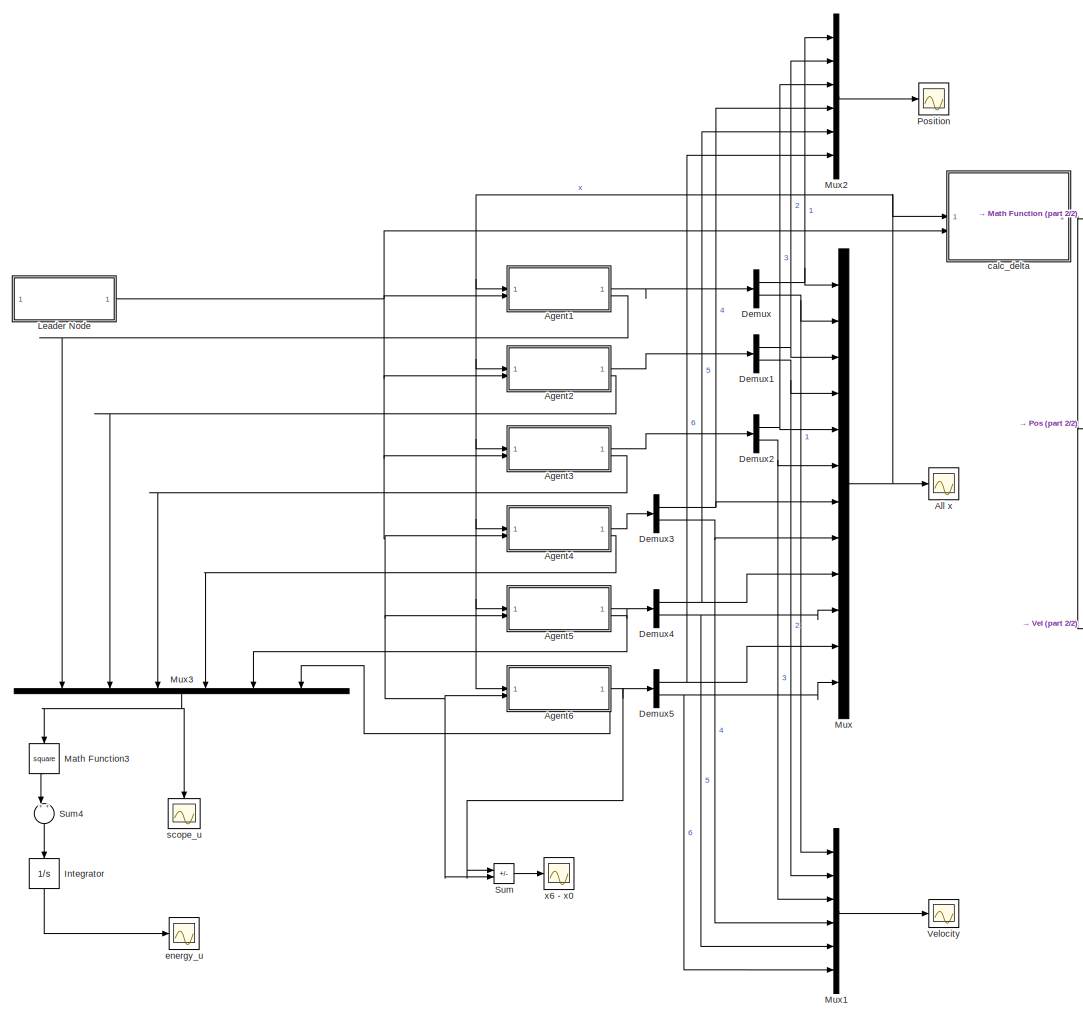
[diagram: root canvas - part 1/2, center side, full height]
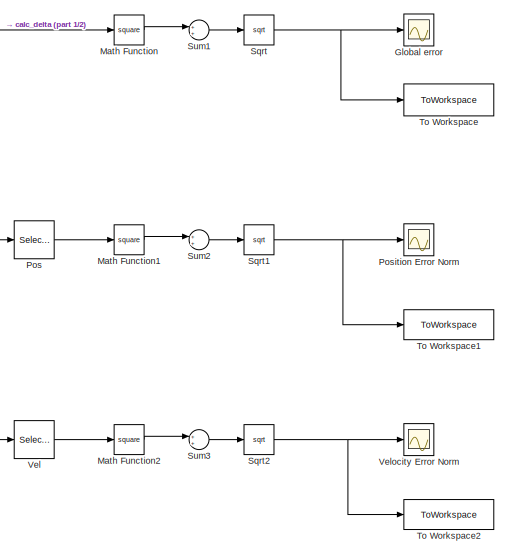
[diagram: root canvas - part 2/2, middle right region]
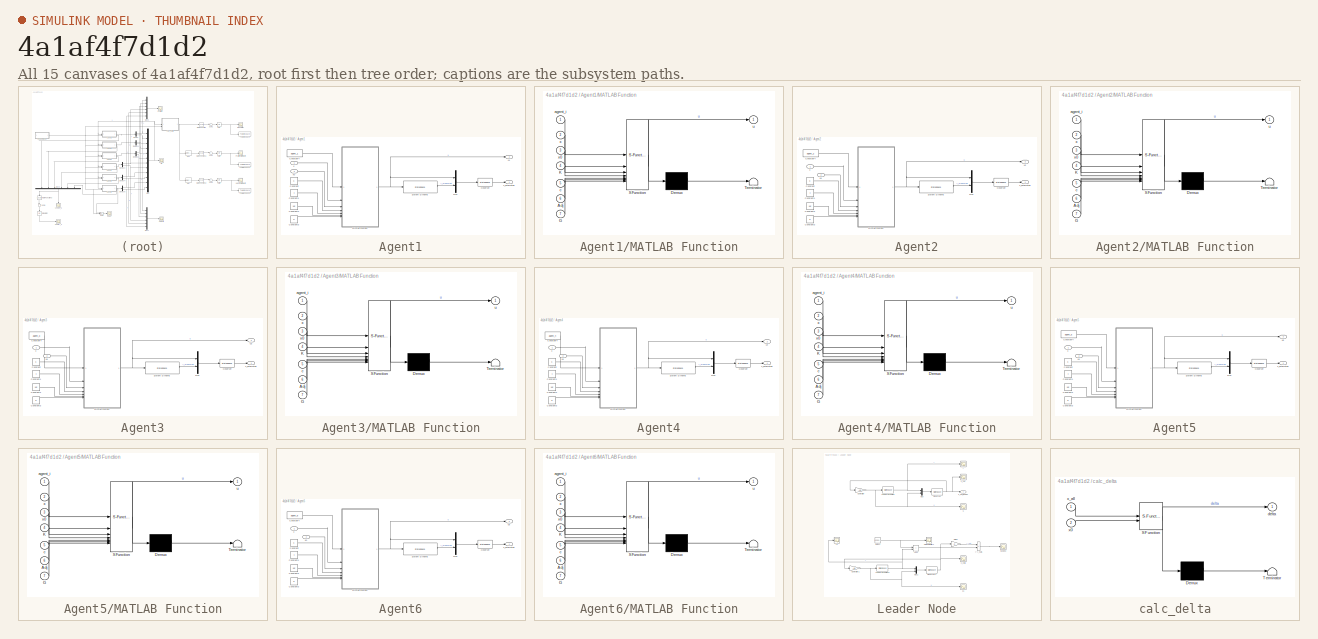
[diagram: thumbnail index - all 15 canvases of the model, root first then tree order]
MODEL slx_4a1af4f7d1d2
KIND model
CONFIG AbsTol = auto
CONFIG EnableMultiTasking = off
CONFIG FixedStep = auto
CONFIG MaxStep = auto
CONFIG MinStep = auto
CONFIG RelTol = 1e-3
CONFIG SampleTimeConstraint = Unconstrained
CONFIG SolverName = VariableStepAuto
CONFIG StartTime = 0.0
CONFIG StopTime = 15
BLOCK [SubSystem] Agent1
BLOCK [Constant] Agent1/Constant
  Value = K
  VectorParams1D = off
BLOCK [Constant] Agent1/Constant1
  Value = c
BLOCK [Constant] Agent1/Constant2
  Value = adj
BLOCK [Constant] Agent1/Constant3
  Value = G
BLOCK [Constant] Agent1/Constant4
  Value = agent_1
  VectorParams1D = off
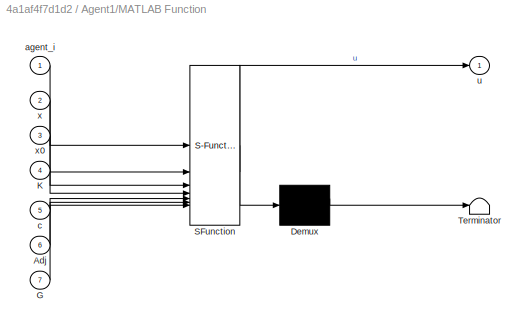
BLOCK [SubSystem] Agent1/MATLAB Function
  ErrorFcn = Stateflow.Translate.translate
  PermitHierarchicalResolution = ExplicitOnly
  SFBlockType = MATLAB Function
  TreatAsAtomicUnit = on
BLOCK [Demux] Agent1/MATLAB Function/ Demux 
  Outputs = 1
BLOCK [S-Function] Agent1/MATLAB Function/ SFunction 
  EnableBusSupport = on
  FunctionName = sf_sfun
  PortCounts = [7 2]
  SFcnIsStateOwnerBlock = off
  SFunctionDeploymentMode = off
  Tag = Stateflow S-Function 2
BLOCK [Terminator] Agent1/MATLAB Function/ Terminator 
BLOCK [Inport] Agent1/MATLAB Function/Adj
  Port = 6
BLOCK [Inport] Agent1/MATLAB Function/G
  Port = 7
BLOCK [Inport] Agent1/MATLAB Function/K
  Port = 4
BLOCK [Inport] Agent1/MATLAB Function/agent_i
BLOCK [Inport] Agent1/MATLAB Function/c
  Port = 5
BLOCK [Outport] Agent1/MATLAB Function/u
BLOCK [Inport] Agent1/MATLAB Function/x
  Port = 2
BLOCK [Inport] Agent1/MATLAB Function/x0
  Port = 3
BLOCK [Mux] Agent1/Mux
  DisplayOption = bar
  Inputs = 2
BLOCK [StateSpace] Agent1/Observer
  A = Aa_obv
  B = Ba_obv
  C = Ca_obv
  D = Da_obv
  InitialCondition = 0
BLOCK [StateSpace] Agent1/System  Dynamic
  A = (A-B*K0)
  B = B
  C = C
  D = 0
  InitialCondition = 0
BLOCK [Outport] Agent1/u1
  Port = 2
BLOCK [Inport] Agent1/x
BLOCK [Inport] Agent1/x0
  Port = 2
BLOCK [Outport] Agent1/x_estimated
BLOCK [SubSystem] Agent2
BLOCK [Constant] Agent2/Constant
  Value = K
  VectorParams1D = off
BLOCK [Constant] Agent2/Constant1
  Value = c
BLOCK [Constant] Agent2/Constant2
  Value = adj
BLOCK [Constant] Agent2/Constant3
  Value = G
BLOCK [Constant] Agent2/Constant4
  Value = agent_2
  VectorParams1D = off
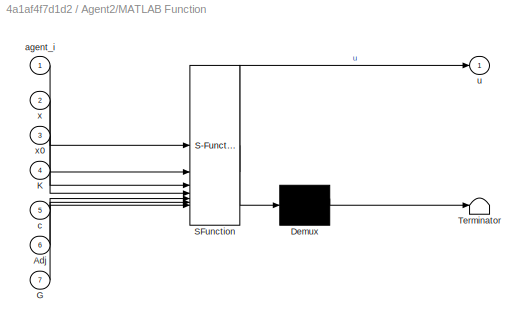
BLOCK [SubSystem] Agent2/MATLAB Function
  ErrorFcn = Stateflow.Translate.translate
  PermitHierarchicalResolution = ExplicitOnly
  SFBlockType = MATLAB Function
  TreatAsAtomicUnit = on
BLOCK [Demux] Agent2/MATLAB Function/ Demux 
  Outputs = 1
BLOCK [S-Function] Agent2/MATLAB Function/ SFunction 
  EnableBusSupport = on
  FunctionName = sf_sfun
  PortCounts = [7 2]
  SFcnIsStateOwnerBlock = off
  SFunctionDeploymentMode = off
  Tag = Stateflow S-Function 1
BLOCK [Terminator] Agent2/MATLAB Function/ Terminator 
BLOCK [Inport] Agent2/MATLAB Function/Adj
  Port = 6
BLOCK [Inport] Agent2/MATLAB Function/G
  Port = 7
BLOCK [Inport] Agent2/MATLAB Function/K
  Port = 4
BLOCK [Inport] Agent2/MATLAB Function/agent_i
BLOCK [Inport] Agent2/MATLAB Function/c
  Port = 5
BLOCK [Outport] Agent2/MATLAB Function/u
BLOCK [Inport] Agent2/MATLAB Function/x
  Port = 2
BLOCK [Inport] Agent2/MATLAB Function/x0
  Port = 3
BLOCK [Mux] Agent2/Mux
  DisplayOption = bar
  Inputs = 2
BLOCK [StateSpace] Agent2/Observer
  A = Aa_obv
  B = Ba_obv
  C = Ca_obv
  D = Da_obv
  InitialCondition = 0
BLOCK [StateSpace] Agent2/System  Dynamic
  A = (A-B*K0)
  B = B
  C = C
  D = 0
  InitialCondition = 0
BLOCK [Outport] Agent2/u2
  Port = 2
BLOCK [Inport] Agent2/x
BLOCK [Inport] Agent2/x0
  Port = 2
BLOCK [Outport] Agent2/x_estimated
BLOCK [SubSystem] Agent3
BLOCK [Constant] Agent3/Constant
  Value = K
  VectorParams1D = off
BLOCK [Constant] Agent3/Constant1
  Value = c
BLOCK [Constant] Agent3/Constant2
  Value = adj
BLOCK [Constant] Agent3/Constant3
  Value = G
BLOCK [Constant] Agent3/Constant4
  Value = agent_3
  VectorParams1D = off
BLOCK [SubSystem] Agent3/MATLAB Function
  ErrorFcn = Stateflow.Translate.translate
  PermitHierarchicalResolution = ExplicitOnly
  SFBlockType = MATLAB Function
  TreatAsAtomicUnit = on
BLOCK [Demux] Agent3/MATLAB Function/ Demux 
  Outputs = 1
BLOCK [S-Function] Agent3/MATLAB Function/ SFunction 
  EnableBusSupport = on
  FunctionName = sf_sfun
  PortCounts = [7 2]
  SFcnIsStateOwnerBlock = off
  SFunctionDeploymentMode = off
  Tag = Stateflow S-Function 3
BLOCK [Terminator] Agent3/MATLAB Function/ Terminator 
BLOCK [Inport] Agent3/MATLAB Function/Adj
  Port = 6
BLOCK [Inport] Agent3/MATLAB Function/G
  Port = 7
BLOCK [Inport] Agent3/MATLAB Function/K
  Port = 4
BLOCK [Inport] Agent3/MATLAB Function/agent_i
BLOCK [Inport] Agent3/MATLAB Function/c
  Port = 5
BLOCK [Outport] Agent3/MATLAB Function/u
BLOCK [Inport] Agent3/MATLAB Function/x
  Port = 2
BLOCK [Inport] Agent3/MATLAB Function/x0
  Port = 3
BLOCK [Mux] Agent3/Mux
  DisplayOption = bar
  Inputs = 2
BLOCK [StateSpace] Agent3/Observer
  A = Aa_obv
  B = Ba_obv
  C = Ca_obv
  D = Da_obv
  InitialCondition = 0
BLOCK [StateSpace] Agent3/System  Dynamic
  A = (A-B*K0)
  B = B
  C = C
  D = 0
  InitialCondition = 0
BLOCK [Outport] Agent3/u3
  Port = 2
BLOCK [Inport] Agent3/x
BLOCK [Inport] Agent3/x0
  Port = 2
BLOCK [Outport] Agent3/x_estimated
BLOCK [SubSystem] Agent4
BLOCK [Constant] Agent4/Constant
  Value = K
  VectorParams1D = off
BLOCK [Constant] Agent4/Constant1
  Value = c
BLOCK [Constant] Agent4/Constant2
  Value = adj
BLOCK [Constant] Agent4/Constant3
  Value = G
BLOCK [Constant] Agent4/Constant4
  Value = agent_4
  VectorParams1D = off
BLOCK [SubSystem] Agent4/MATLAB Function
  ErrorFcn = Stateflow.Translate.translate
  PermitHierarchicalResolution = ExplicitOnly
  SFBlockType = MATLAB Function
  TreatAsAtomicUnit = on
BLOCK [Demux] Agent4/MATLAB Function/ Demux 
  Outputs = 1
BLOCK [S-Function] Agent4/MATLAB Function/ SFunction 
  EnableBusSupport = on
  FunctionName = sf_sfun
  PortCounts = [7 2]
  SFcnIsStateOwnerBlock = off
  SFunctionDeploymentMode = off
  Tag = Stateflow S-Function 4
BLOCK [Terminator] Agent4/MATLAB Function/ Terminator 
BLOCK [Inport] Agent4/MATLAB Function/Adj
  Port = 6
BLOCK [Inport] Agent4/MATLAB Function/G
  Port = 7
BLOCK [Inport] Agent4/MATLAB Function/K
  Port = 4
BLOCK [Inport] Agent4/MATLAB Function/agent_i
BLOCK [Inport] Agent4/MATLAB Function/c
  Port = 5
BLOCK [Outport] Agent4/MATLAB Function/u
BLOCK [Inport] Agent4/MATLAB Function/x
  Port = 2
BLOCK [Inport] Agent4/MATLAB Function/x0
  Port = 3
BLOCK [Mux] Agent4/Mux
  DisplayOption = bar
  Inputs = 2
BLOCK [StateSpace] Agent4/Observer
  A = Aa_obv
  B = Ba_obv
  C = Ca_obv
  D = Da_obv
  InitialCondition = 0
BLOCK [StateSpace] Agent4/System  Dynamic
  A = (A-B*K0)
  B = B
  C = C
  D = 0
  InitialCondition = 0
BLOCK [Outport] Agent4/u4
  Port = 2
BLOCK [Inport] Agent4/x
BLOCK [Inport] Agent4/x0
  Port = 2
BLOCK [Outport] Agent4/x_estimated
BLOCK [SubSystem] Agent5
BLOCK [Constant] Agent5/Constant
  Value = K
  VectorParams1D = off
BLOCK [Constant] Agent5/Constant1
  Value = c
BLOCK [Constant] Agent5/Constant2
  Value = adj
BLOCK [Constant] Agent5/Constant3
  Value = G
BLOCK [Constant] Agent5/Constant4
  Value = agent_5
  VectorParams1D = off
BLOCK [SubSystem] Agent5/MATLAB Function
  ErrorFcn = Stateflow.Translate.translate
  PermitHierarchicalResolution = ExplicitOnly
  SFBlockType = MATLAB Function
  TreatAsAtomicUnit = on
BLOCK [Demux] Agent5/MATLAB Function/ Demux 
  Outputs = 1
BLOCK [S-Function] Agent5/MATLAB Function/ SFunction 
  EnableBusSupport = on
  FunctionName = sf_sfun
  PortCounts = [7 2]
  SFcnIsStateOwnerBlock = off
  SFunctionDeploymentMode = off
  Tag = Stateflow S-Function 5
BLOCK [Terminator] Agent5/MATLAB Function/ Terminator 
BLOCK [Inport] Agent5/MATLAB Function/Adj
  Port = 6
BLOCK [Inport] Agent5/MATLAB Function/G
  Port = 7
BLOCK [Inport] Agent5/MATLAB Function/K
  Port = 4
BLOCK [Inport] Agent5/MATLAB Function/agent_i
BLOCK [Inport] Agent5/MATLAB Function/c
  Port = 5
BLOCK [Outport] Agent5/MATLAB Function/u
BLOCK [Inport] Agent5/MATLAB Function/x
  Port = 2
BLOCK [Inport] Agent5/MATLAB Function/x0
  Port = 3
BLOCK [Mux] Agent5/Mux
  DisplayOption = bar
  Inputs = 2
BLOCK [StateSpace] Agent5/Observer
  A = Aa_obv
  B = Ba_obv
  C = Ca_obv
  D = Da_obv
  InitialCondition = 0
BLOCK [StateSpace] Agent5/System  Dynamic
  A = (A-B*K0)
  B = B
  C = C
  D = 0
  InitialCondition = 0
BLOCK [Outport] Agent5/u5
  Port = 2
BLOCK [Inport] Agent5/x
BLOCK [Inport] Agent5/x0
  Port = 2
BLOCK [Outport] Agent5/x_estimated
BLOCK [SubSystem] Agent6
BLOCK [Constant] Agent6/Constant
  Value = K
  VectorParams1D = off
BLOCK [Constant] Agent6/Constant1
  Value = c
BLOCK [Constant] Agent6/Constant2
  Value = adj
BLOCK [Constant] Agent6/Constant3
  Value = G
BLOCK [Constant] Agent6/Constant4
  Value = agent_6
  VectorParams1D = off
BLOCK [SubSystem] Agent6/MATLAB Function
  ErrorFcn = Stateflow.Translate.translate
  PermitHierarchicalResolution = ExplicitOnly
  SFBlockType = MATLAB Function
  TreatAsAtomicUnit = on
BLOCK [Demux] Agent6/MATLAB Function/ Demux 
  Outputs = 1
BLOCK [S-Function] Agent6/MATLAB Function/ SFunction 
  EnableBusSupport = on
  FunctionName = sf_sfun
  PortCounts = [7 2]
  SFcnIsStateOwnerBlock = off
  SFunctionDeploymentMode = off
  Tag = Stateflow S-Function 6
BLOCK [Terminator] Agent6/MATLAB Function/ Terminator 
BLOCK [Inport] Agent6/MATLAB Function/Adj
  Port = 6
BLOCK [Inport] Agent6/MATLAB Function/G
  Port = 7
BLOCK [Inport] Agent6/MATLAB Function/K
  Port = 4
BLOCK [Inport] Agent6/MATLAB Function/agent_i
BLOCK [Inport] Agent6/MATLAB Function/c
  Port = 5
BLOCK [Outport] Agent6/MATLAB Function/u
BLOCK [Inport] Agent6/MATLAB Function/x
  Port = 2
BLOCK [Inport] Agent6/MATLAB Function/x0
  Port = 3
BLOCK [Mux] Agent6/Mux
  DisplayOption = bar
  Inputs = 2
BLOCK [StateSpace] Agent6/Observer
  A = Aa_obv
  B = Ba_obv
  C = Ca_obv
  D = Da_obv
  InitialCondition = 0
BLOCK [StateSpace] Agent6/System  Dynamic
  A = (A-B*K0)
  B = B
  C = C
  D = 0
  InitialCondition = 0
BLOCK [Outport] Agent6/u6
  Port = 2
BLOCK [Inport] Agent6/x
BLOCK [Inport] Agent6/x0
  Port = 2
BLOCK [Outport] Agent6/x_estimated
BLOCK [Scope] All x
  Floating = off
  NumInputPorts = 1
  ScopeSpecificationString = Simulink.scopes.TimeScopeBlockCfg('CurrentConfiguration', extmgr.ConfigurationSet(extmgr.Configuration('Core','General UI',true,'FigureColor',[1 1 1]),extmgr.Configuration('Core','Source UI',true),extmgr.Configuration('Sources','WiredSimulink',true,'DataLoggingVariableName','ScopeData1'),extmgr.Configuration('Visuals','Time Domain',true,'SerializedDisplays',{struct('MinYLimReal','-5536.62496','Max...<+1756ch>
BLOCK [Demux] Demux
  Outputs = 2
BLOCK [Demux] Demux1
  Outputs = 2
BLOCK [Demux] Demux2
  Outputs = 2
BLOCK [Demux] Demux3
  Outputs = 2
BLOCK [Demux] Demux4
  Outputs = 2
BLOCK [Demux] Demux5
  Outputs = 2
BLOCK [Scope] Global error
  Floating = off
  NumInputPorts = 1
  ScopeSpecificationString = Simulink.scopes.TimeScopeBlockCfg('CurrentConfiguration', extmgr.ConfigurationSet(extmgr.Configuration('Core','General UI',true),extmgr.Configuration('Core','Source UI',true),extmgr.Configuration('Sources','WiredSimulink',true,'DataLoggingVariableName','ScopeData1'),extmgr.Configuration('Visuals','Time Domain',true,'SerializedDisplays',{struct('MinYLimReal','-3182.10365','MaxYLimReal','28638.93286...<+1509ch>
BLOCK [Integrator] Integrator
  NameLocation = left
BLOCK [SubSystem] Leader Node
BLOCK [Sum] Leader Node/Add1
  Commented = on
  IconShape = rectangular
BLOCK [Gain] Leader Node/Controller
  Gain = -K0
  Multiplication = Matrix(K*u)
BLOCK [Gain] Leader Node/Controller1
  Commented = on
  Gain = -K0
  Multiplication = Matrix(K*u)
BLOCK [Gain] Leader Node/Gain1
  Commented = on
  Gain = C
  Multiplication = Matrix(K*u)
BLOCK [StateSpace] Leader Node/Leader Dynamics
  A = A
  B = B
  C = C
  D = D
  InitialCondition = [0 100]'
BLOCK [StateSpace] Leader Node/Leader Dynamics1
  A = A
  B = B
  C = C
  Commented = on
  D = D
  InitialCondition = [0 10]'
BLOCK [Mux] Leader Node/Mux
  DisplayOption = bar
  Inputs = 2
BLOCK [Mux] Leader Node/Mux1
  Commented = on
  DisplayOption = bar
  Inputs = 2
BLOCK [Scope] Leader Node/Noise Monitor1
  Commented = on
  Floating = off
  NumInputPorts = 1
  ScopeSpecificationString = Simulink.scopes.TimeScopeBlockCfg('CurrentConfiguration', extmgr.ConfigurationSet(extmgr.Configuration('Core','General UI',true),extmgr.Configuration('Core','Source UI',true),extmgr.Configuration('Sources','WiredSimulink',true,'DataLoggingVariableName','ScopeData4'),extmgr.Configuration('Visuals','Time Domain',true,'SerializedDisplays',{struct('MinYLimReal','-0.36327','MaxYLimReal','0.39669','YLab...<+1533ch>
BLOCK [RandomNumber] Leader Node/Noise1
  Commented = on
  SampleTime = 0.01
  Seed = agent_0
  Variance = leader_noise_variance
BLOCK [StateSpace] Leader Node/Observer
  A = A0_obv
  B = B0_obv
  C = C0_obv
  D = D0_obv
  InitialCondition = 0
BLOCK [StateSpace] Leader Node/Observer1
  A = A0_obv
  B = B0_obv
  C = C0_obv
  Commented = on
  D = D0_obv
  InitialCondition = 0
BLOCK [Scope] Leader Node/Scope2
  Commented = on
  Floating = off
  NumInputPorts = 1
  ScopeSpecificationString = Simulink.scopes.TimeScopeBlockCfg('CurrentConfiguration', extmgr.ConfigurationSet(extmgr.Configuration('Core','General UI',true),extmgr.Configuration('Core','Source UI',true),extmgr.Configuration('Sources','WiredSimulink',true,'DataLoggingVariableName','ScopeData5'),extmgr.Configuration('Visuals','Time Domain',true,'SerializedDisplays',{struct('MinYLimReal','-0.36327','MaxYLimReal','0.39669','YLab...<+1510ch>
BLOCK [Scope] Leader Node/u
  Floating = off
  NumInputPorts = 1
  ScopeSpecificationString = Simulink.scopes.TimeScopeBlockCfg('CurrentConfiguration', extmgr.ConfigurationSet(extmgr.Configuration('Core','General UI',true),extmgr.Configuration('Core','Source UI',true),extmgr.Configuration('Sources','WiredSimulink',true,'DataLoggingVariableName','ScopeData2'),extmgr.Configuration('Visuals','Time Domain',true,'SerializedDisplays',{struct('MinYLimReal','-490388.15804','MaxYLimReal','4413493.4...<+1518ch>
BLOCK [Scope] Leader Node/u1
  Commented = on
  Floating = off
  NumInputPorts = 1
  ScopeSpecificationString = Simulink.scopes.TimeScopeBlockCfg('CurrentConfiguration', extmgr.ConfigurationSet(extmgr.Configuration('Core','General UI',true),extmgr.Configuration('Core','Source UI',true),extmgr.Configuration('Sources','WiredSimulink',true,'DataLoggingVariableName','ScopeData6'),extmgr.Configuration('Visuals','Time Domain',true,'SerializedDisplays',{struct('MinYLimReal','-49038.8158','MaxYLimReal','441349.3422...<+1512ch>
BLOCK [Scope] Leader Node/x_hat
  Floating = off
  NumInputPorts = 1
  ScopeSpecificationString = Simulink.scopes.TimeScopeBlockCfg('CurrentConfiguration', extmgr.ConfigurationSet(extmgr.Configuration('Core','General UI',true),extmgr.Configuration('Core','Source UI',true),extmgr.Configuration('Sources','WiredSimulink',true,'DataLoggingVariableName','ScopeData9'),extmgr.Configuration('Visuals','Time Domain',true,'SerializedDisplays',{struct('MinYLimReal','-3921433.78356','MaxYLimReal','35292904...<+1518ch>
BLOCK [Scope] Leader Node/x_hat1
  Commented = on
  Floating = off
  NameLocation = right
  NumInputPorts = 1
  ScopeSpecificationString = Simulink.scopes.TimeScopeBlockCfg('CurrentConfiguration', extmgr.ConfigurationSet(extmgr.Configuration('Core','General UI',true),extmgr.Configuration('Core','Source UI',true),extmgr.Configuration('Sources','WiredSimulink',true,'DataLoggingVariableName','ScopeData7'),extmgr.Configuration('Visuals','Time Domain',true,'SerializedDisplays',{struct('MinYLimReal','-553.66368','MaxYLimReal','4982.97316',...<+1608ch>
BLOCK [Outport] Leader Node/x_hat_leader
BLOCK [Scope] Leader Node/y
  Floating = off
  NumInputPorts = 1
  ScopeSpecificationString = Simulink.scopes.TimeScopeBlockCfg('CurrentConfiguration', extmgr.ConfigurationSet(extmgr.Configuration('Core','General UI',true),extmgr.Configuration('Core','Source UI',true),extmgr.Configuration('Sources','WiredSimulink',true),extmgr.Configuration('Visuals','Time Domain',true,'SerializedDisplays',{struct('MinYLimReal','-3921433.78356','MaxYLimReal','35292904.052','YLabelReal','','MinYLimMag','   ...<+1479ch>
BLOCK [Sum] Leader Node/y - y_hat1
  Commented = on
  IconShape = rectangular
  Inputs = -+
BLOCK [Scope] Leader Node/y1
  Commented = on
  Floating = off
  NumInputPorts = 1
  ScopeSpecificationString = Simulink.scopes.TimeScopeBlockCfg('CurrentConfiguration', extmgr.ConfigurationSet(extmgr.Configuration('Core','General UI',true),extmgr.Configuration('Core','Source UI',true),extmgr.Configuration('Sources','WiredSimulink',true,'DataLoggingVariableName','ScopeData8'),extmgr.Configuration('Visuals','Time Domain',true,'SerializedDisplays',{struct('MinYLimReal','-1.00000','MaxYLimReal','1.00000','YLab...<+1476ch>
BLOCK [Math] Math Function
  Operator = square
BLOCK [Math] Math Function1
  Operator = square
BLOCK [Math] Math Function2
  Operator = square
BLOCK [Math] Math Function3
  NameLocation = left
  Operator = square
BLOCK [Mux] Mux
  DisplayOption = bar
  Inputs = 12
BLOCK [Mux] Mux1
  DisplayOption = bar
  Inputs = 6
BLOCK [Mux] Mux2
  DisplayOption = bar
  Inputs = 6
BLOCK [Mux] Mux3
  DisplayOption = bar
  Inputs = 6
  NameLocation = left
BLOCK [Selector] Pos
  IndexOptions = Index vector (dialog),Select all
  Indices = [1],1
  InputPortWidth = 3
  NumberOfDimensions = 2
  OutputSizes = 1,1
BLOCK [Scope] Position
  Floating = off
  NumInputPorts = 1
  ScopeSpecificationString = Simulink.scopes.TimeScopeBlockCfg('CurrentConfiguration', extmgr.ConfigurationSet(extmgr.Configuration('Core','General UI',true,'FigureColor',[1 1 1]),extmgr.Configuration('Core','Source UI',true),extmgr.Configuration('Sources','WiredSimulink',true,'DataLoggingVariableName','ScopeData2'),extmgr.Configuration('Visuals','Time Domain',true,'SerializedDisplays',{struct('MinYLimReal','-5536.65001','Max...<+1704ch>
BLOCK [Scope] Position Error Norm 
  Floating = off
  NumInputPorts = 1
  ScopeSpecificationString = Simulink.scopes.TimeScopeBlockCfg('CurrentConfiguration', extmgr.ConfigurationSet(extmgr.Configuration('Core','General UI',true),extmgr.Configuration('Core','Source UI',true),extmgr.Configuration('Sources','WiredSimulink',true,'DataLoggingVariableName','ScopeData2'),extmgr.Configuration('Visuals','Time Domain',true,'SerializedDisplays',{struct('MinYLimReal','-3163.57495','MaxYLimReal','28472.17451...<+1512ch>
BLOCK [Sqrt] Sqrt
BLOCK [Sqrt] Sqrt1
BLOCK [Sqrt] Sqrt2
BLOCK [Sum] Sum
  IconShape = rectangular
  Inputs = +-
BLOCK [Sum] Sum1
  Inputs = 1
BLOCK [Sum] Sum2
  Inputs = 1
BLOCK [Sum] Sum3
  Inputs = 1
BLOCK [Sum] Sum4
  Inputs = 1
  NameLocation = left
BLOCK [ToWorkspace] To Workspace
  FixptAsFi = on
  MaxDataPoints = inf
  SampleTime = -1
  Save2DSignal = 2-D array (concatenate along first dimension)
  VariableName = Global_error
BLOCK [ToWorkspace] To Workspace1
  FixptAsFi = on
  MaxDataPoints = inf
  SampleTime = -1
  Save2DSignal = 2-D array (concatenate along first dimension)
  VariableName = Position_Error_Norm
BLOCK [ToWorkspace] To Workspace2
  FixptAsFi = on
  MaxDataPoints = inf
  SampleTime = -1
  Save2DSignal = 2-D array (concatenate along first dimension)
  VariableName = Velocity_Error_Norm
BLOCK [Selector] Vel
  IndexOptions = Index vector (dialog),Select all
  Indices = [2],1
  InputPortWidth = 3
  NumberOfDimensions = 2
  OutputSizes = 1,1
BLOCK [Scope] Velocity
  Floating = off
  NumInputPorts = 1
  ScopeSpecificationString = Simulink.scopes.TimeScopeBlockCfg('CurrentConfiguration', extmgr.ConfigurationSet(extmgr.Configuration('Core','General UI',true),extmgr.Configuration('Core','Source UI',true),extmgr.Configuration('Sources','WiredSimulink',true,'DataLoggingVariableName','ScopeData3'),extmgr.Configuration('Visuals','Time Domain',true,'SerializedDisplays',{struct('MinYLimReal','-1762.17898','MaxYLimReal','15859.61079...<+1525ch>
BLOCK [Scope] Velocity Error Norm
  Floating = off
  NumInputPorts = 1
  ScopeSpecificationString = Simulink.scopes.TimeScopeBlockCfg('CurrentConfiguration', extmgr.ConfigurationSet(extmgr.Configuration('Core','General UI',true),extmgr.Configuration('Core','Source UI',true),extmgr.Configuration('Sources','WiredSimulink',true,'DataLoggingVariableName','ScopeData3'),extmgr.Configuration('Visuals','Time Domain',true,'SerializedDisplays',{struct('MinYLimReal','-2438.70681','MaxYLimReal','21948.36128...<+1512ch>
BLOCK [SubSystem] calc_delta
  ErrorFcn = Stateflow.Translate.translate
  PermitHierarchicalResolution = ExplicitOnly
  SFBlockType = MATLAB Function
  TreatAsAtomicUnit = on
BLOCK [Demux] calc_delta/ Demux 
  Outputs = 1
BLOCK [S-Function] calc_delta/ SFunction 
  EnableBusSupport = on
  FunctionName = sf_sfun
  PortCounts = [2 2]
  SFcnIsStateOwnerBlock = off
  SFunctionDeploymentMode = off
  Tag = Stateflow S-Function 7
BLOCK [Terminator] calc_delta/ Terminator 
BLOCK [Outport] calc_delta/delta
BLOCK [Inport] calc_delta/x0
  Port = 2
BLOCK [Inport] calc_delta/x_all
BLOCK [Scope] energy_u
  Floating = off
  NumInputPorts = 1
  ScopeSpecificationString = Simulink.scopes.TimeScopeBlockCfg('CurrentConfiguration', extmgr.ConfigurationSet(extmgr.Configuration('Core','General UI',true,'FigureColor',[1 1 1]),extmgr.Configuration('Core','Source UI',true),extmgr.Configuration('Sources','WiredSimulink',true,'DataLoggingVariableName','ScopeData2'),extmgr.Configuration('Visuals','Time Domain',true,'SerializedDisplays',{struct('MinYLimReal','-4943281.7994','M...<+1986ch>
BLOCK [Scope] scope_u
  Floating = off
  NameLocation = right
  NumInputPorts = 1
  ScopeSpecificationString = Simulink.scopes.TimeScopeBlockCfg('CurrentConfiguration', extmgr.ConfigurationSet(extmgr.Configuration('Core','General UI',true,'FigureColor',[1 1 1]),extmgr.Configuration('Core','Source UI',true),extmgr.Configuration('Sources','WiredSimulink',true,'DataLoggingVariableName','ScopeData1'),extmgr.Configuration('Visuals','Time Domain',true,'SerializedDisplays',{struct('MinYLimReal','-2511.73759','Max...<+1736ch>
BLOCK [Scope] x6 - x0
  Floating = off
  NumInputPorts = 1
  ScopeSpecificationString = Simulink.scopes.TimeScopeBlockCfg('CurrentConfiguration', extmgr.ConfigurationSet(extmgr.Configuration('Core','General UI',true),extmgr.Configuration('Core','Source UI',true),extmgr.Configuration('Sources','WiredSimulink',true,'DataLoggingVariableName','ScopeData10'),extmgr.Configuration('Visuals','Time Domain',true,'SerializedDisplays',{struct('MinYLimReal','-18295.41535','MaxYLimReal','7872.9424...<+1519ch>
LINE Agent1/Constant1:1 -> Agent1/MATLAB Function:5
LINE Agent1/Constant2:1 -> Agent1/MATLAB Function:6
LINE Agent1/Constant3:1 -> Agent1/MATLAB Function:7
LINE Agent1/Constant4:1 -> Agent1/MATLAB Function:1
LINE Agent1/Constant:1 -> Agent1/MATLAB Function:4
NET Agent1/MATLAB Function:1 -> Agent1/Mux:1, Agent1/System  Dynamic:1, Agent1/u1:1
LINE Agent1/Mux:1 -> Agent1/Observer:1
LINE Agent1/Observer:1 -> Agent1/x_estimated:1
LINE Agent1/System  Dynamic:1 -> Agent1/Mux:2
LINE Agent1/x0:1 -> Agent1/MATLAB Function:3
LINE Agent1/x:1 -> Agent1/MATLAB Function:2
LINE Agent1:1 -> Demux:1
LINE Agent1:2 -> Mux3:1
LINE Agent2/Constant1:1 -> Agent2/MATLAB Function:5
LINE Agent2/Constant2:1 -> Agent2/MATLAB Function:6
LINE Agent2/Constant3:1 -> Agent2/MATLAB Function:7
LINE Agent2/Constant4:1 -> Agent2/MATLAB Function:1
LINE Agent2/Constant:1 -> Agent2/MATLAB Function:4
NET Agent2/MATLAB Function:1 -> Agent2/Mux:1, Agent2/System  Dynamic:1, Agent2/u2:1
LINE Agent2/Mux:1 -> Agent2/Observer:1
LINE Agent2/Observer:1 -> Agent2/x_estimated:1
LINE Agent2/System  Dynamic:1 -> Agent2/Mux:2
LINE Agent2/x0:1 -> Agent2/MATLAB Function:3
LINE Agent2/x:1 -> Agent2/MATLAB Function:2
LINE Agent2:1 -> Demux1:1
LINE Agent2:2 -> Mux3:2
LINE Agent3/Constant1:1 -> Agent3/MATLAB Function:5
LINE Agent3/Constant2:1 -> Agent3/MATLAB Function:6
LINE Agent3/Constant3:1 -> Agent3/MATLAB Function:7
LINE Agent3/Constant4:1 -> Agent3/MATLAB Function:1
LINE Agent3/Constant:1 -> Agent3/MATLAB Function:4
NET Agent3/MATLAB Function:1 -> Agent3/Mux:1, Agent3/System  Dynamic:1, Agent3/u3:1
LINE Agent3/Mux:1 -> Agent3/Observer:1
LINE Agent3/Observer:1 -> Agent3/x_estimated:1
LINE Agent3/System  Dynamic:1 -> Agent3/Mux:2
LINE Agent3/x0:1 -> Agent3/MATLAB Function:3
LINE Agent3/x:1 -> Agent3/MATLAB Function:2
LINE Agent3:1 -> Demux2:1
LINE Agent3:2 -> Mux3:3
LINE Agent4/Constant1:1 -> Agent4/MATLAB Function:5
LINE Agent4/Constant2:1 -> Agent4/MATLAB Function:6
LINE Agent4/Constant3:1 -> Agent4/MATLAB Function:7
LINE Agent4/Constant4:1 -> Agent4/MATLAB Function:1
LINE Agent4/Constant:1 -> Agent4/MATLAB Function:4
NET Agent4/MATLAB Function:1 -> Agent4/Mux:1, Agent4/System  Dynamic:1, Agent4/u4:1
LINE Agent4/Mux:1 -> Agent4/Observer:1
LINE Agent4/Observer:1 -> Agent4/x_estimated:1
LINE Agent4/System  Dynamic:1 -> Agent4/Mux:2
LINE Agent4/x0:1 -> Agent4/MATLAB Function:3
LINE Agent4/x:1 -> Agent4/MATLAB Function:2
LINE Agent4:1 -> Demux3:1
LINE Agent4:2 -> Mux3:4
LINE Agent5/Constant1:1 -> Agent5/MATLAB Function:5
LINE Agent5/Constant2:1 -> Agent5/MATLAB Function:6
LINE Agent5/Constant3:1 -> Agent5/MATLAB Function:7
LINE Agent5/Constant4:1 -> Agent5/MATLAB Function:1
LINE Agent5/Constant:1 -> Agent5/MATLAB Function:4
NET Agent5/MATLAB Function:1 -> Agent5/Mux:1, Agent5/System  Dynamic:1, Agent5/u5:1
LINE Agent5/Mux:1 -> Agent5/Observer:1
LINE Agent5/Observer:1 -> Agent5/x_estimated:1
LINE Agent5/System  Dynamic:1 -> Agent5/Mux:2
LINE Agent5/x0:1 -> Agent5/MATLAB Function:3
LINE Agent5/x:1 -> Agent5/MATLAB Function:2
LINE Agent5:1 -> Demux4:1
LINE Agent5:2 -> Mux3:5
LINE Agent6/Constant1:1 -> Agent6/MATLAB Function:5
LINE Agent6/Constant2:1 -> Agent6/MATLAB Function:6
LINE Agent6/Constant3:1 -> Agent6/MATLAB Function:7
LINE Agent6/Constant4:1 -> Agent6/MATLAB Function:1
LINE Agent6/Constant:1 -> Agent6/MATLAB Function:4
NET Agent6/MATLAB Function:1 -> Agent6/Mux:1, Agent6/System  Dynamic:1, Agent6/u6:1
LINE Agent6/Mux:1 -> Agent6/Observer:1
LINE Agent6/Observer:1 -> Agent6/x_estimated:1
LINE Agent6/System  Dynamic:1 -> Agent6/Mux:2
LINE Agent6/x0:1 -> Agent6/MATLAB Function:3
LINE Agent6/x:1 -> Agent6/MATLAB Function:2
NET Agent6:1 -> Demux5:1, Sum:1
LINE Agent6:2 -> Mux3:6
NET Demux1:1 -> Mux2:2, Mux:3
NET Demux1:2 -> Mux1:2, Mux:4
NET Demux2:1 -> Mux2:3, Mux:5
NET Demux2:2 -> Mux1:3, Mux:6
NET Demux3:1 -> Mux2:4, Mux:7
NET Demux3:2 -> Mux1:4, Mux:8
NET Demux4:1 -> Mux2:5, Mux:9
NET Demux4:2 -> Mux1:5, Mux:10
NET Demux5:1 -> Mux2:6, Mux:11
NET Demux5:2 -> Mux1:6, Mux:12
NET Demux:1 -> Mux2:1, Mux:1
NET Demux:2 -> Mux1:1, Mux:2
LINE Integrator:1 -> energy_u:1
LINE Leader Node/Add1:1 -> Leader Node/y - y_hat1:2
NET Leader Node/Controller1:1 -> Leader Node/Leader Dynamics1:1, Leader Node/Mux1:2, Leader Node/u1:1
NET Leader Node/Controller:1 -> Leader Node/Leader Dynamics:1, Leader Node/Mux:2, Leader Node/u:1
LINE Leader Node/Gain1:1 -> Leader Node/y - y_hat1:1
NET Leader Node/Leader Dynamics1:1 -> Leader Node/Add1:2, Leader Node/Mux1:1, Leader Node/y1:1
NET Leader Node/Leader Dynamics:1 -> Leader Node/Mux:1, Leader Node/y:1
LINE Leader Node/Mux1:1 -> Leader Node/Observer1:1
LINE Leader Node/Mux:1 -> Leader Node/Observer:1
NET Leader Node/Noise1:1 -> Leader Node/Add1:1, Leader Node/Noise Monitor1:1
NET Leader Node/Observer1:1 -> Leader Node/Controller1:1, Leader Node/Gain1:1, Leader Node/x_hat1:1
NET Leader Node/Observer:1 -> Leader Node/Controller:1, Leader Node/x_hat:1, Leader Node/x_hat_leader:1
LINE Leader Node/y - y_hat1:1 -> Leader Node/Scope2:1
NET Leader Node:1 -> Agent1:2, Agent2:2, Agent3:2, Agent4:2, Agent5:2, Agent6:2, Sum:2, calc_delta:2
LINE Math Function1:1 -> Sum2:1
LINE Math Function2:1 -> Sum3:1
LINE Math Function3:1 -> Sum4:1
LINE Math Function:1 -> Sum1:1
LINE Mux1:1 -> Velocity:1
LINE Mux2:1 -> Position:1
NET Mux3:1 -> Math Function3:1, scope_u:1
NET Mux:1 -> Agent1:1, Agent2:1, Agent3:1, Agent4:1, Agent5:1, Agent6:1, All x:1, calc_delta:1
LINE Pos:1 -> Math Function1:1
NET Sqrt1:1 -> Position Error Norm :1, To Workspace1:1
NET Sqrt2:1 -> To Workspace2:1, Velocity Error Norm:1
NET Sqrt:1 -> Global error:1, To Workspace:1
LINE Sum1:1 -> Sqrt:1
LINE Sum2:1 -> Sqrt1:1
LINE Sum3:1 -> Sqrt2:1
LINE Sum4:1 -> Integrator:1
LINE Sum:1 -> x6 - x0:1
LINE Vel:1 -> Math Function2:1
NET calc_delta:1 -> Math Function:1, Pos:1, Vel:1
note: NET lines group one-source signal fan-out (src -> all destinations, sorted); 1:1 wires keep LINE
CHART Agent2/MATLAB Function states=1 transitions=1
  STATE_LABEL 'eML_blk_kernel()'
  STATE_LABEL 'SCRIPT:\nfunction u = controller_agent(agent_i, x, x0, K, c, Adj, G)\n\n% N = number of agents\nN = length(Adj);  \n\n% Number of entries of x\norder = 2;\n\n% Get the i-th 2x1 vector from the 12x1 size array (12 = N * 2, without leader)\nget_x = @(idx) x(idx*order - (order-1) : idx*order);\n\n% Error towards leader (reference)\na = G(agent_i)*(x0 - get_x(agent_i));\n\n% Consensus error among agents\nepsilon_i = ...<+183ch>'  <repeated x6 — deduplicated; at blocks: MATLAB Function>
CHART Agent1/MATLAB Function states=1 transitions=1
  STATE_LABEL 'eML_blk_kernel()'
CHART Agent3/MATLAB Function states=1 transitions=1
  STATE_LABEL 'eML_blk_kernel()'
CHART Agent4/MATLAB Function states=1 transitions=1
  STATE_LABEL 'eML_blk_kernel()'
CHART Agent5/MATLAB Function states=1 transitions=1
  STATE_LABEL 'eML_blk_kernel()'
CHART Agent6/MATLAB Function states=1 transitions=1
  STATE_LABEL 'eML_blk_kernel()'
CHART calc_delta states=1 transitions=1
  STATE_LABEL 'eML_blk_kernel()'
  STATE_LABEL 'SCRIPT:\nfunction delta = calc_delta(x_all, x0)\n% x_all: vettore [12x1] (2 stati per ciascuno dei 6 follower)\n% x0: vettore [2x1] (leader)\n\nN = length(x_all)/2; % numero di follower\ndelta = zeros(2, N); % matrice [2x6]\n\nfor i = 1:N\n    xi = x_all(2*i-1:2*i); % prendi x_i\n    delta(:, i) = xi - x0; % errore rispetto al leader\nend\n\n%Uscita del blocco delta:\n%È una matrice 2×6 (righe = [posizione; vel...<+27ch>'
CHART  states=0 transitions=0
CHART  states=0 transitions=0
CHART  states=0 transitions=0
CHART  states=0 transitions=0
CHART  states=0 transitions=0
CHART  states=0 transitions=0
CHART  states=0 transitions=0
